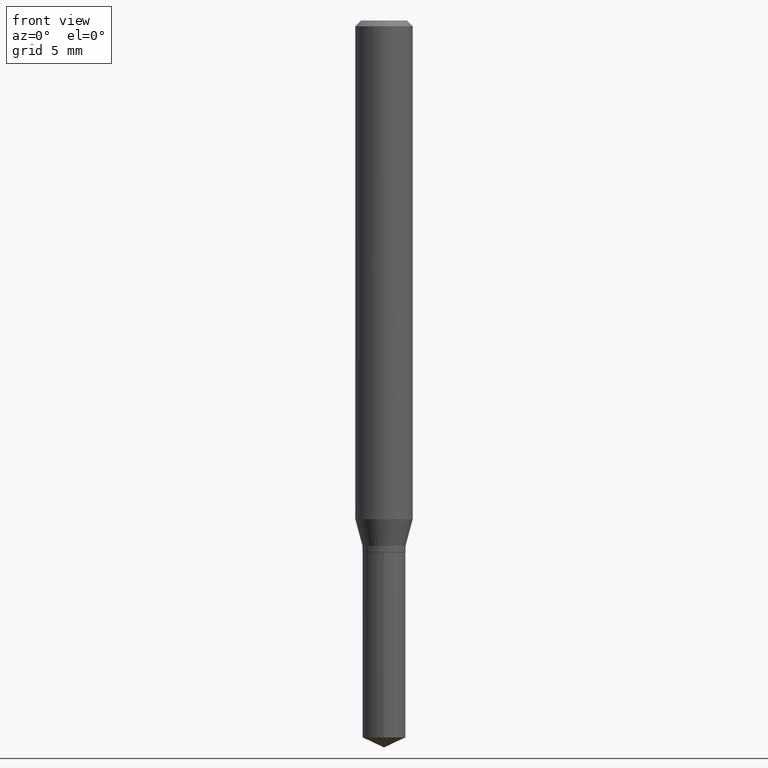
[diagram: clean part render]
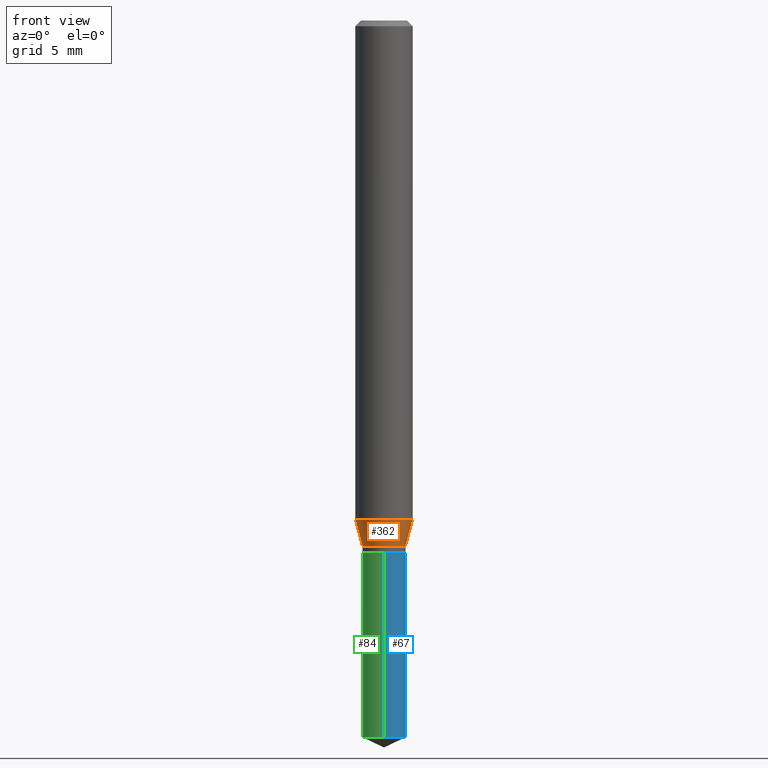
[diagram: same view with three faces highlighted in distinct colors, each labeled with its STEP entity id]
A machine part, front view with three faces highlighted in distinct colors.
Their STEP definitions:

[orange] entity #362 — the highlighted conical surface has half-angle 15 deg.
#12 = CARTESIAN_POINT ( 'NONE',  ( 2.509423319210504221E-29, -3.582791433741148906E-15, -1.026152250588358461 ) ) ;
#15 = CARTESIAN_POINT ( 'NONE',  ( 2.644040873247369889E-29, -3.774989623557209201E-15, -1.081199999999999939 ) ) ;
#29 = EDGE_CURVE ( 'NONE', #131, #184, #221, .T. ) ;
#63 = FACE_OUTER_BOUND ( 'NONE', #220, .T. ) ;
#131 = VERTEX_POINT ( 'NONE', #392 ) ;
#133 = DIRECTION ( 'NONE',  ( 0.2588190451025207950, 1.565188264969625912E-15, 0.9659258262890682012 ) ) ;
#171 = ORIENTED_EDGE ( 'NONE', *, *, #29, .F. ) ;
#181 = VECTOR ( 'NONE', #189, 39.37007874015748854 ) ;
#183 = AXIS2_PLACEMENT_3D ( 'NONE', #15, #282, #432 ) ;
#184 = VERTEX_POINT ( 'NONE', #195 ) ;
#189 = DIRECTION ( 'NONE',  ( -0.2588190451025207950, 5.211531920934546309E-15, 0.9659258262890682012 ) ) ;
#195 = CARTESIAN_POINT ( 'NONE',  ( -0.05905000000000013016, -3.163215948274808624E-15, -1.026152250588358461 ) ) ;
#207 = CARTESIAN_POINT ( 'NONE',  ( 0.05905000000000013016, -3.995135379858523826E-15, -1.026152250588358461 ) ) ;
#215 = CARTESIAN_POINT ( 'NONE',  ( 0.04429999999999997135, -4.084334870178709888E-15, -1.081199999999999939 ) ) ;
#220 = EDGE_LOOP ( 'NONE', ( #171, #252, #337, #483 ) ) ;
#221 = LINE ( 'NONE', #331, #181 ) ;
#232 = CIRCLE ( 'NONE', #333, 0.04429999999999997135 ) ;
#238 = CIRCLE ( 'NONE', #461, 0.05905000000000013016 ) ;
#247 = DIRECTION ( 'NONE',  ( 1.000000000000000000, -6.982962677686265133E-15, 0.000000000000000000 ) ) ;
#252 = ORIENTED_EDGE ( 'NONE', *, *, #276, .T. ) ;
#276 = EDGE_CURVE ( 'NONE', #131, #402, #232, .T. ) ;
#280 = VECTOR ( 'NONE', #133, 39.37007874015748854 ) ;
#282 = DIRECTION ( 'NONE',  ( -2.445468806185136597E-29, 3.491481338843145583E-15, 1.000000000000000000 ) ) ;
#311 = CARTESIAN_POINT ( 'NONE',  ( 2.644040873247369889E-29, -3.774989623557209201E-15, -1.081199999999999939 ) ) ;
#325 = VERTEX_POINT ( 'NONE', #207 ) ;
#331 = CARTESIAN_POINT ( 'NONE',  ( -0.04429999999999997135, -3.460219191615484775E-15, -1.081199999999999939 ) ) ;
#333 = AXIS2_PLACEMENT_3D ( 'NONE', #311, #389, #462 ) ;
#337 = ORIENTED_EDGE ( 'NONE', *, *, #418, .T. ) ;
#356 = LINE ( 'NONE', #473, #280 ) ;
#362 = ADVANCED_FACE ( 'NONE', ( #63 ), #399, .T. ) ;
#389 = DIRECTION ( 'NONE',  ( -2.445468806185136597E-29, 3.491481338843145583E-15, 1.000000000000000000 ) ) ;
#392 = CARTESIAN_POINT ( 'NONE',  ( -0.04429999999999997135, -3.482564672184080810E-15, -1.081199999999999939 ) ) ;
#399 = CONICAL_SURFACE ( 'NONE', #183, 0.04429999999999997135, 0.2617993877991495189 ) ;
#402 = VERTEX_POINT ( 'NONE', #215 ) ;
#418 = EDGE_CURVE ( 'NONE', #402, #325, #356, .T. ) ;
#426 = EDGE_CURVE ( 'NONE', #184, #325, #238, .T. ) ;
#432 = DIRECTION ( 'NONE',  ( 1.000000000000000000, -6.982962677686262766E-15, 0.000000000000000000 ) ) ;
#461 = AXIS2_PLACEMENT_3D ( 'NONE', #12, #470, #247 ) ;
#462 = DIRECTION ( 'NONE',  ( 1.000000000000000000, -6.982962677686262766E-15, 0.000000000000000000 ) ) ;
#470 = DIRECTION ( 'NONE',  ( -2.445468806185136597E-29, 3.491481338843145583E-15, 1.000000000000000000 ) ) ;
#473 = CARTESIAN_POINT ( 'NONE',  ( 0.04429999999999997135, -4.084334870178709888E-15, -1.081199999999999939 ) ) ;
#483 = ORIENTED_EDGE ( 'NONE', *, *, #426, .F. ) ;

[blue] entity #67 — the highlighted cylindrical surface (edge-blend (fillet) strip) has radius 1.1252 mm, axis along (-0, 0, 1).
#1 = FACE_OUTER_BOUND ( 'NONE', #296, .T. ) ;
#9 = LINE ( 'NONE', #275, #81 ) ;
#20 = CARTESIAN_POINT ( 'NONE',  ( 3.147704319417604663E-16, 0.04429999999999485738, -1.475442570743733750 ) ) ;
#31 = CARTESIAN_POINT ( 'NONE',  ( 2.676565608369631794E-29, -3.821426325363822773E-15, -1.094499999999999806 ) ) ;
#36 = CYLINDRICAL_SURFACE ( 'NONE', #391, 0.04429999999999999910 ) ;
#42 = DIRECTION ( 'NONE',  ( -2.445358326776455790E-29, 3.491639551644474585E-15, 1.000000000000000000 ) ) ;
#51 = CARTESIAN_POINT ( 'NONE',  ( -3.093452466214748031E-16, -0.04430000000000382243, -1.094499999999999806 ) ) ;
#67 = ADVANCED_FACE ( 'NONE', ( #1 ), #36, .T. ) ;
#75 = CIRCLE ( 'NONE', #351, 0.04429999999999999910 ) ;
#81 = VECTOR ( 'NONE', #42, 39.37007874015748143 ) ;
#83 = LINE ( 'NONE', #51, #358 ) ;
#85 = DIRECTION ( 'NONE',  ( -2.445358326776455510E-29, 3.491639551644474585E-15, 1.000000000000000000 ) ) ;
#92 = CARTESIAN_POINT ( 'NONE',  ( -3.093452466214655833E-16, -0.04430000000000515470, -1.475442570743733306 ) ) ;
#146 = DIRECTION ( 'NONE',  ( -6.982962677686265133E-15, -1.000000000000000000, 3.083349879982238325E-15 ) ) ;
#162 = EDGE_CURVE ( 'NONE', #437, #435, #9, .T. ) ;
#169 = ORIENTED_EDGE ( 'NONE', *, *, #273, .F. ) ;
#179 = DIRECTION ( 'NONE',  ( -2.445358326776455510E-29, 3.491639551644474585E-15, 1.000000000000000000 ) ) ;
#186 = ORIENTED_EDGE ( 'NONE', *, *, #469, .F. ) ;
#194 = CARTESIAN_POINT ( 'NONE',  ( 3.608106695761450652E-29, -5.151540472277766445E-15, -1.475442570743733528 ) ) ;
#199 = AXIS2_PLACEMENT_3D ( 'NONE', #194, #179, #274 ) ;
#202 = DIRECTION ( 'NONE',  ( -2.445358326776455790E-29, 3.491639551644474585E-15, 1.000000000000000000 ) ) ;
#216 = VERTEX_POINT ( 'NONE', #268 ) ;
#226 = DIRECTION ( 'NONE',  ( -6.982962677686265133E-15, -1.000000000000000000, 3.083349879982238325E-15 ) ) ;
#268 = CARTESIAN_POINT ( 'NONE',  ( -3.093452466214748031E-16, -0.04430000000000382243, -1.094499999999999806 ) ) ;
#273 = EDGE_CURVE ( 'NONE', #300, #216, #83, .T. ) ;
#274 = DIRECTION ( 'NONE',  ( -6.982962677686265133E-15, -1.000000000000000000, 6.166699759964476650E-15 ) ) ;
#275 = CARTESIAN_POINT ( 'NONE',  ( 3.147704319417510493E-16, 0.04429999999999617577, -1.094500000000000028 ) ) ;
#296 = EDGE_LOOP ( 'NONE', ( #307, #327, #186, #169 ) ) ;
#300 = VERTEX_POINT ( 'NONE', #92 ) ;
#301 = CARTESIAN_POINT ( 'NONE',  ( 2.676565608369631794E-29, -3.821426325363822773E-15, -1.094499999999999806 ) ) ;
#307 = ORIENTED_EDGE ( 'NONE', *, *, #489, .T. ) ;
#327 = ORIENTED_EDGE ( 'NONE', *, *, #162, .T. ) ;
#351 = AXIS2_PLACEMENT_3D ( 'NONE', #301, #85, #226 ) ;
#358 = VECTOR ( 'NONE', #202, 39.37007874015748143 ) ;
#365 = CARTESIAN_POINT ( 'NONE',  ( 3.147704319417604170E-16, 0.04429999999999617577, -1.094500000000000028 ) ) ;
#391 = AXIS2_PLACEMENT_3D ( 'NONE', #31, #451, #146 ) ;
#415 = CIRCLE ( 'NONE', #199, 0.04429999999999999910 ) ;
#435 = VERTEX_POINT ( 'NONE', #365 ) ;
#437 = VERTEX_POINT ( 'NONE', #20 ) ;
#451 = DIRECTION ( 'NONE',  ( -2.445358326776455510E-29, 3.491639551644474585E-15, 1.000000000000000000 ) ) ;
#469 = EDGE_CURVE ( 'NONE', #216, #435, #75, .T. ) ;
#489 = EDGE_CURVE ( 'NONE', #300, #437, #415, .T. ) ;

[green] entity #84 — the highlighted cylindrical surface (edge-blend (fillet) strip) has radius 1.1252 mm, axis along (-0, 0, 1).
#3 = AXIS2_PLACEMENT_3D ( 'NONE', #24, #130, #165 ) ;
#9 = LINE ( 'NONE', #275, #81 ) ;
#19 = ORIENTED_EDGE ( 'NONE', *, *, #172, .T. ) ;
#20 = CARTESIAN_POINT ( 'NONE',  ( 3.147704319417604663E-16, 0.04429999999999485738, -1.475442570743733750 ) ) ;
#23 = ORIENTED_EDGE ( 'NONE', *, *, #273, .T. ) ;
#24 = CARTESIAN_POINT ( 'NONE',  ( 2.676565608369631794E-29, -3.821426325363822773E-15, -1.094499999999999806 ) ) ;
#42 = DIRECTION ( 'NONE',  ( -2.445358326776455790E-29, 3.491639551644474585E-15, 1.000000000000000000 ) ) ;
#51 = CARTESIAN_POINT ( 'NONE',  ( -3.093452466214748031E-16, -0.04430000000000382243, -1.094499999999999806 ) ) ;
#62 = AXIS2_PLACEMENT_3D ( 'NONE', #73, #155, #77 ) ;
#65 = EDGE_LOOP ( 'NONE', ( #338, #19, #23, #357 ) ) ;
#73 = CARTESIAN_POINT ( 'NONE',  ( 2.676565608369631794E-29, -3.821426325363822773E-15, -1.094499999999999806 ) ) ;
#77 = DIRECTION ( 'NONE',  ( -6.982962677686265133E-15, -1.000000000000000000, 3.083349879982238325E-15 ) ) ;
#81 = VECTOR ( 'NONE', #42, 39.37007874015748143 ) ;
#83 = LINE ( 'NONE', #51, #358 ) ;
#84 = ADVANCED_FACE ( 'NONE', ( #417 ), #114, .T. ) ;
#89 = CIRCLE ( 'NONE', #3, 0.04429999999999999910 ) ;
#92 = CARTESIAN_POINT ( 'NONE',  ( -3.093452466214655833E-16, -0.04430000000000515470, -1.475442570743733306 ) ) ;
#114 = CYLINDRICAL_SURFACE ( 'NONE', #62, 0.04429999999999999910 ) ;
#130 = DIRECTION ( 'NONE',  ( -2.445358326776455510E-29, 3.491639551644474585E-15, 1.000000000000000000 ) ) ;
#155 = DIRECTION ( 'NONE',  ( -2.445358326776455510E-29, 3.491639551644474585E-15, 1.000000000000000000 ) ) ;
#162 = EDGE_CURVE ( 'NONE', #437, #435, #9, .T. ) ;
#165 = DIRECTION ( 'NONE',  ( -6.982962677686265133E-15, -1.000000000000000000, 3.083349879982238325E-15 ) ) ;
#172 = EDGE_CURVE ( 'NONE', #437, #300, #299, .T. ) ;
#198 = DIRECTION ( 'NONE',  ( -6.982962677686265133E-15, -1.000000000000000000, 6.166699759964476650E-15 ) ) ;
#202 = DIRECTION ( 'NONE',  ( -2.445358326776455790E-29, 3.491639551644474585E-15, 1.000000000000000000 ) ) ;
#206 = AXIS2_PLACEMENT_3D ( 'NONE', #278, #347, #198 ) ;
#216 = VERTEX_POINT ( 'NONE', #268 ) ;
#268 = CARTESIAN_POINT ( 'NONE',  ( -3.093452466214748031E-16, -0.04430000000000382243, -1.094499999999999806 ) ) ;
#273 = EDGE_CURVE ( 'NONE', #300, #216, #83, .T. ) ;
#275 = CARTESIAN_POINT ( 'NONE',  ( 3.147704319417510493E-16, 0.04429999999999617577, -1.094500000000000028 ) ) ;
#278 = CARTESIAN_POINT ( 'NONE',  ( 3.608106695761450652E-29, -5.151540472277766445E-15, -1.475442570743733528 ) ) ;
#299 = CIRCLE ( 'NONE', #206, 0.04429999999999999910 ) ;
#300 = VERTEX_POINT ( 'NONE', #92 ) ;
#321 = EDGE_CURVE ( 'NONE', #435, #216, #89, .T. ) ;
#338 = ORIENTED_EDGE ( 'NONE', *, *, #162, .F. ) ;
#347 = DIRECTION ( 'NONE',  ( -2.445358326776455510E-29, 3.491639551644474585E-15, 1.000000000000000000 ) ) ;
#357 = ORIENTED_EDGE ( 'NONE', *, *, #321, .F. ) ;
#358 = VECTOR ( 'NONE', #202, 39.37007874015748143 ) ;
#365 = CARTESIAN_POINT ( 'NONE',  ( 3.147704319417604170E-16, 0.04429999999999617577, -1.094500000000000028 ) ) ;
#417 = FACE_OUTER_BOUND ( 'NONE', #65, .T. ) ;
#435 = VERTEX_POINT ( 'NONE', #365 ) ;
#437 = VERTEX_POINT ( 'NONE', #20 ) ;